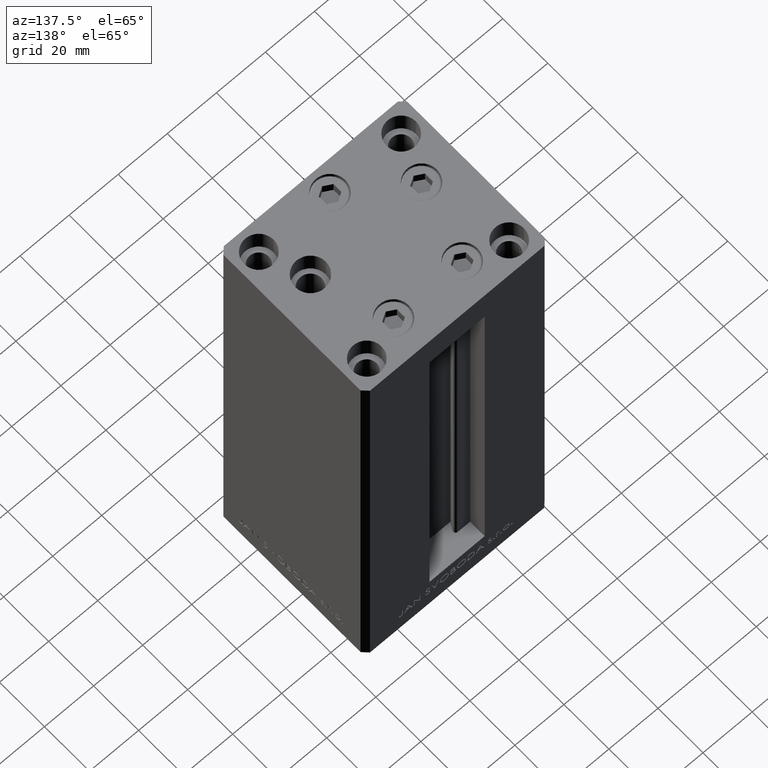
[diagram: clean part render]
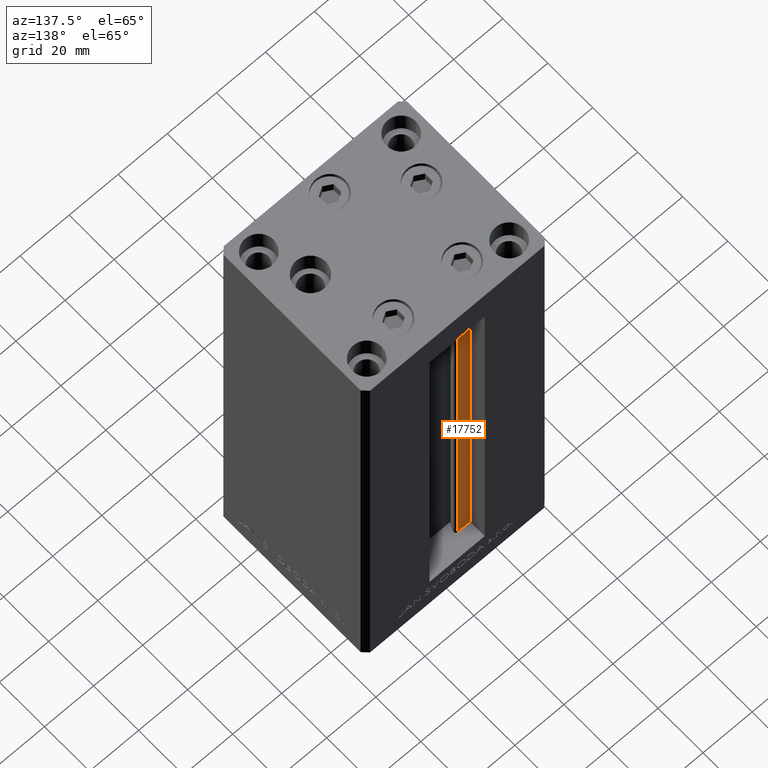
[diagram: same view with one face highlighted and labeled with its STEP entity id]
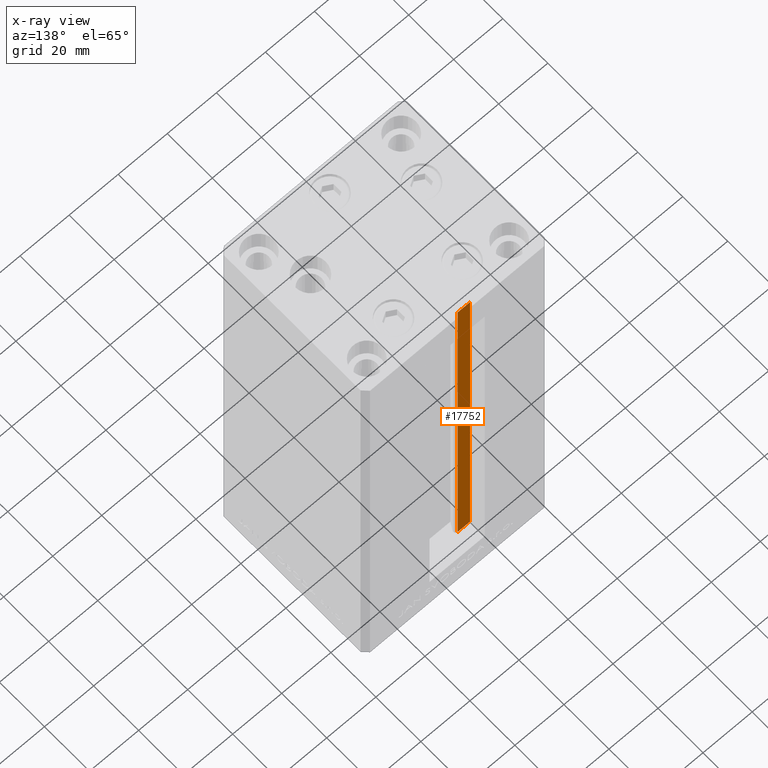
[diagram: x-ray of the same camera — body ghosted, the highlighted face saturated]
A machine part, auxiliary view. The second image highlights one B-rep face of the part: STEP entity #17752.
The next image is the same camera in x-ray: the body ghosted, the highlighted face saturated — about 0% of this face is hidden behind the body in this view.
In plain terms, the highlighted planar face has unit normal (0, -1, 0).
Its self-contained STEP definition (entity closure, byte-faithful):
#168 = CARTESIAN_POINT ( 'NONE',  ( -6.183333333334001480, 25.99999999999999289, 156.0000000000000000 ) ) ;
#3769 = LINE ( 'NONE', #19075, #5001 ) ;
#4600 = EDGE_LOOP ( 'NONE', ( #18694, #27658, #40182, #23145 ) ) ;
#4842 = DIRECTION ( 'NONE',  ( 1.000000000000000000, -0.000000000000000000, -0.000000000000000000 ) ) ;
#5001 = VECTOR ( 'NONE', #49721, 1000.000000000000000 ) ;
#7632 = VECTOR ( 'NONE', #4842, 1000.000000000000000 ) ;
#9355 = LINE ( 'NONE', #35006, #7632 ) ;
#9941 = CARTESIAN_POINT ( 'NONE',  ( -11.25000000000000178, 25.99999999999999289, 156.0000000000000000 ) ) ;
#10585 = VERTEX_POINT ( 'NONE', #168 ) ;
#10596 = VERTEX_POINT ( 'NONE', #43362 ) ;
#10702 = PLANE ( 'NONE',  #47484 ) ;
#14471 = CARTESIAN_POINT ( 'NONE',  ( -6.183333333334001480, 25.99999999999999289, 0.000000000000000000 ) ) ;
#17752 = ADVANCED_FACE ( 'NONE', ( #18483 ), #10702, .F. ) ;
#18483 = FACE_OUTER_BOUND ( 'NONE', #4600, .T. ) ;
#18694 = ORIENTED_EDGE ( 'NONE', *, *, #44423, .F. ) ;
#19075 = CARTESIAN_POINT ( 'NONE',  ( 0.000000000000000000, 25.99999999999999289, 156.0000000000000000 ) ) ;
#19336 = EDGE_CURVE ( 'NONE', #10596, #27512, #36669, .T. ) ;
#19430 = VECTOR ( 'NONE', #48925, 1000.000000000000000 ) ;
#23145 = ORIENTED_EDGE ( 'NONE', *, *, #44124, .F. ) ;
#24862 = CARTESIAN_POINT ( 'NONE',  ( -11.25000000000000178, 25.99999999999999289, 0.000000000000000000 ) ) ;
#27512 = VERTEX_POINT ( 'NONE', #9941 ) ;
#27658 = ORIENTED_EDGE ( 'NONE', *, *, #29726, .F. ) ;
#28947 = CARTESIAN_POINT ( 'NONE',  ( -6.183333333334001480, 25.99999999999999289, 0.000000000000000000 ) ) ;
#29583 = CARTESIAN_POINT ( 'NONE',  ( -6.183333333334001480, 25.99999999999999289, 0.000000000000000000 ) ) ;
#29726 = EDGE_CURVE ( 'NONE', #10596, #41114, #9355, .T. ) ;
#30061 = DIRECTION ( 'NONE',  ( 0.000000000000000000, 0.000000000000000000, -1.000000000000000000 ) ) ;
#35006 = CARTESIAN_POINT ( 'NONE',  ( -6.183333333334001480, 25.99999999999999289, 0.000000000000000000 ) ) ;
#36669 = LINE ( 'NONE', #24862, #43540 ) ;
#40182 = ORIENTED_EDGE ( 'NONE', *, *, #19336, .T. ) ;
#41114 = VERTEX_POINT ( 'NONE', #28947 ) ;
#43362 = CARTESIAN_POINT ( 'NONE',  ( -11.25000000000000178, 25.99999999999999289, 0.000000000000000000 ) ) ;
#43540 = VECTOR ( 'NONE', #47501, 1000.000000000000000 ) ;
#44124 = EDGE_CURVE ( 'NONE', #10585, #27512, #3769, .T. ) ;
#44423 = EDGE_CURVE ( 'NONE', #41114, #10585, #45434, .T. ) ;
#45434 = LINE ( 'NONE', #29583, #19430 ) ;
#47484 = AXIS2_PLACEMENT_3D ( 'NONE', #14471, #49144, #30061 ) ;
#47501 = DIRECTION ( 'NONE',  ( -0.000000000000000000, -0.000000000000000000, 1.000000000000000000 ) ) ;
#48925 = DIRECTION ( 'NONE',  ( -0.000000000000000000, -0.000000000000000000, 1.000000000000000000 ) ) ;
#49144 = DIRECTION ( 'NONE',  ( 0.000000000000000000, -1.000000000000000000, -0.000000000000000000 ) ) ;
#49721 = DIRECTION ( 'NONE',  ( -1.000000000000000000, 0.000000000000000000, 0.000000000000000000 ) ) ;